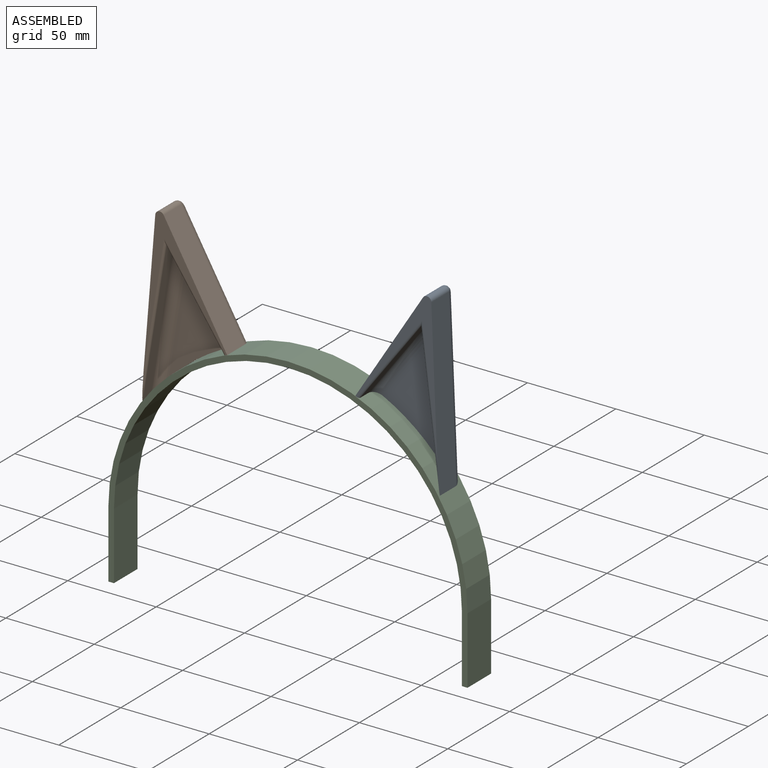
[diagram: assembled view]
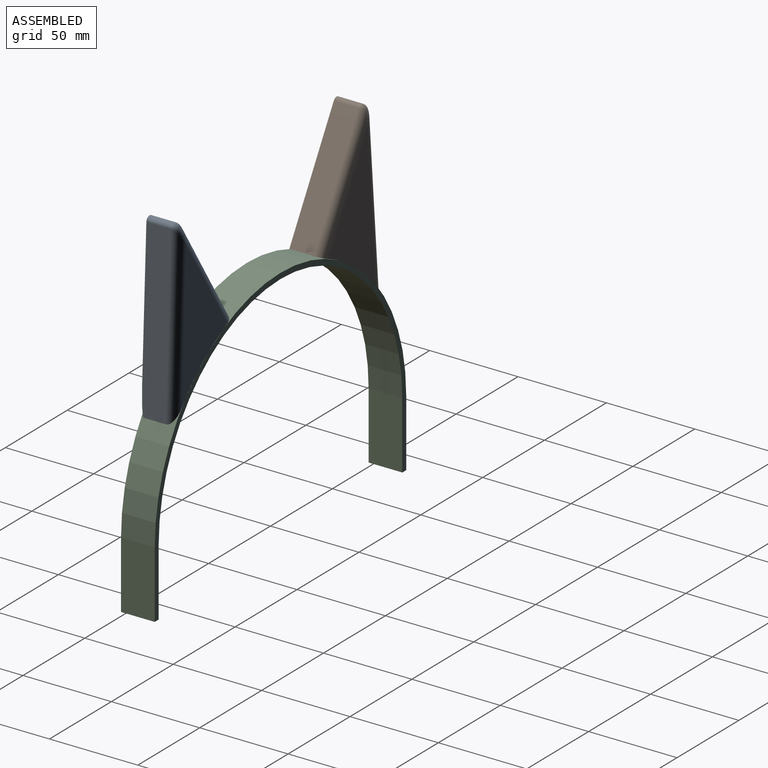
[diagram: assembled view, second angle]
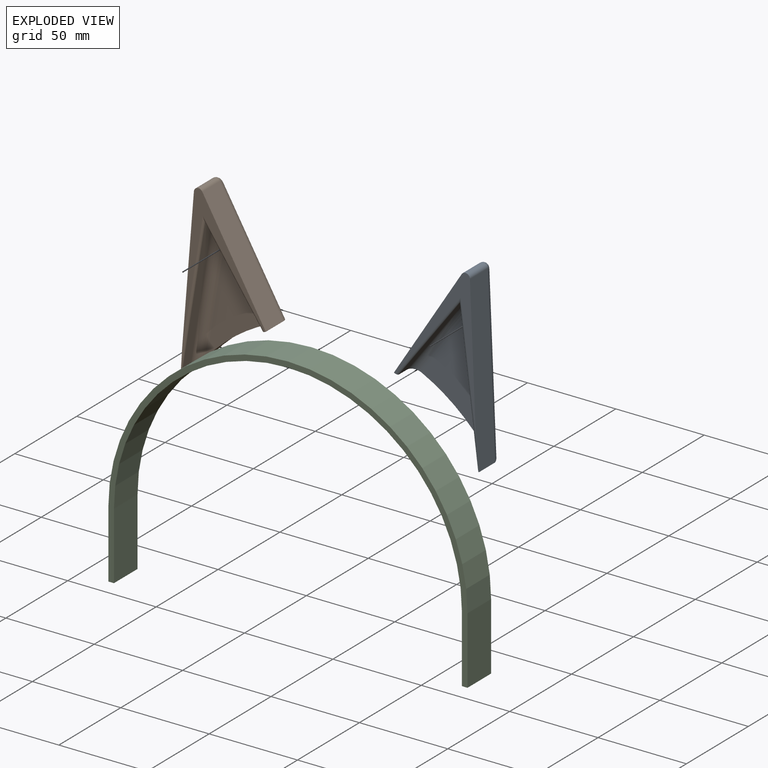
[diagram: exploded view]
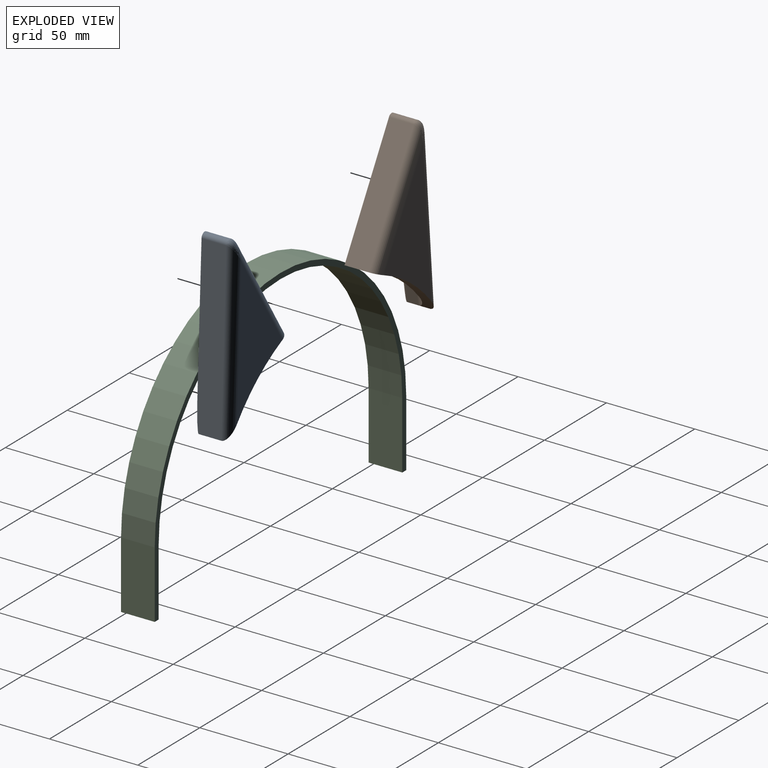
[diagram: exploded view, second angle]
ASSEMBLY  parts=3 mates=2
PART A: 16 faces, bbox 56.7x19.4x103.5 mm
  f0: plane 68.44x21.39mm, normal (-0.95,0,0.3), area 1001.7mm2, adj f1,f4,f12,f15
  f1: plane 80.53x50.85mm, normal (0,-1,0), area 508.9mm2, adj f0,f3,f4,f8,f9,f12
  f2: plane 78.67x43.31mm, normal (0,1,0), area 1385.8mm2, adj f12,f13,f15
  f3: plane 93.84x29.33mm, normal (0.95,0,0.3), area 1369.2mm2, adj f1,f4,f5,f8,f12,f13
  f4: cylinder r=2.54mm len=13.97mm, axis (0,-1,0), area 90mm2, adj f0,f1,f3,f14
  f5: plane 78.74x31.75mm, normal (-0.93,0,-0.37), area 539.1mm2, adj f3,f6,f8,f10
  f6: plane 53.64x21.63mm, normal (0.93,0,-0.37), area 367.2mm2, adj f5,f9,f11,f12
  f7: plane 58.53x40.11mm, normal (0,-1,0), area 896.2mm2, adj f10,f11,f12
  f8: cylinder r=1.27mm len=82.14mm, axis (-0.37,0,0.93), area 160.2mm2, adj f1,f3,f5,f9
  f9: cylinder r=1.27mm len=57.33mm, axis (-0.37,0,-0.93), area 117.9mm2, adj f1,f6,f8,f12
  f10: cylinder r=5.08mm len=80.64mm, axis (-0.37,0,0.93), area 613.1mm2, adj f5,f7,f11,f12
  f11: cylinder r=5.08mm len=55.54mm, axis (-0.37,0,-0.93), area 421.6mm2, adj f6,f7,f10,f12
  f12: cylinder r=101.6mm len=55.56mm, axis (0,1,0), area 423.3mm2, adj f0,f1,f2,f3,f6,f7,f9,f10
  f13: cylinder r=5.08mm len=95.36mm, axis (0.3,0,-0.95), area 737.6mm2, adj f2,f3,f12,f14
  f14: bspline ~17.03x9.09mm, area 44mm2, adj f4,f13,f15
  f15: cylinder r=5.08mm len=69.96mm, axis (0.3,0,0.95), area 546.2mm2, adj f0,f2,f12,f14
PART B: 16 faces, bbox 56.7x19.4x103.5 mm
  f0: plane 80.53x50.85mm, normal (0,-1,0), area 508.9mm2, adj f2,f3,f7,f8,f9,f12
  f1: plane 78.67x43.31mm, normal (0,1,0), area 1385.8mm2, adj f12,f13,f15
  f2: plane 93.84x29.33mm, normal (-0.95,0,0.3), area 1369.2mm2, adj f0,f5,f7,f9,f12,f15
  f3: plane 68.44x21.39mm, normal (0.95,0,0.3), area 1001.7mm2, adj f0,f7,f12,f13
  f4: plane 53.64x21.63mm, normal (-0.93,0,-0.37), area 367.2mm2, adj f5,f8,f10,f12
  f5: plane 78.74x31.75mm, normal (0.93,0,-0.37), area 539.1mm2, adj f2,f4,f9,f11
  f6: plane 58.53x40.11mm, normal (0,-1,0), area 896.2mm2, adj f10,f11,f12
  f7: cylinder r=2.54mm len=13.97mm, axis (0,-1,0), area 90mm2, adj f0,f2,f3,f14
  f8: cylinder r=1.27mm len=57.33mm, axis (-0.37,0,0.93), area 117.9mm2, adj f0,f4,f9,f12
  f9: cylinder r=1.27mm len=82.14mm, axis (-0.37,0,-0.93), area 160.2mm2, adj f0,f2,f5,f8
  f10: cylinder r=5.08mm len=55.54mm, axis (-0.37,0,0.93), area 421.6mm2, adj f4,f6,f11,f12
  f11: cylinder r=5.08mm len=80.64mm, axis (-0.37,0,-0.93), area 613.1mm2, adj f5,f6,f10,f12
  f12: cylinder r=101.6mm len=55.56mm, axis (0,1,0), area 423.3mm2, adj f0,f1,f2,f3,f4,f6,f8,f10
  f13: cylinder r=5.08mm len=69.96mm, axis (0.3,0,-0.95), area 546.2mm2, adj f1,f3,f12,f14
  f14: bspline ~17.03x6.48mm, area 44mm2, adj f7,f13,f15
  f15: cylinder r=5.08mm len=95.36mm, axis (0.3,0,0.95), area 737.6mm2, adj f1,f2,f12,f14
PART C: 10 faces, bbox 203.2x19.1x139.7 mm
  f0: cylinder r=101.6mm len=203.2mm, axis (0,1,0), area 6080.5mm2, adj f1,f2,f4,f8
  f1: plane 203.2x139.7mm, normal (0,-1,0), area 1239.5mm2, adj f0,f3,f4,f5,f6,f7,f8,f9
  f2: plane 203.2x139.7mm, normal (0,1,0), area 1239.5mm2, adj f0,f3,f4,f5,f6,f7,f8,f9
  f3: cylinder r=98.42mm len=196.85mm, axis (0,-1,0), area 5890.5mm2, adj f1,f2,f5,f7
  f4: plane 38.1x19.05mm, normal (-1,0,0), area 725.8mm2, adj f0,f1,f2,f6
  f5: plane 38.1x19.05mm, normal (1,0,0), area 725.8mm2, adj f1,f2,f3,f6
  f6: plane 19.05x3.18mm, normal (0,0,-1), area 60.5mm2, adj f1,f2,f4,f5
  f7: plane 38.1x19.05mm, normal (-1,0,0), area 725.8mm2, adj f1,f2,f3,f9
  f8: plane 38.1x19.05mm, normal (1,0,0), area 725.8mm2, adj f0,f1,f2,f9
  f9: plane 19.05x3.18mm, normal (0,0,-1), area 60.5mm2, adj f1,f2,f7,f8
PLACE A rot(axis=(0,1,0),15deg) t=(-15.25,-63.81,-9.22)mm
PLACE B rot(axis=(0,-1,0),12.7deg) t=(-119.3,-69.57,-27.55)mm
PLACE C t=(-27.22,-28.39,-84.1)mm fixed
MATE revolute B.f12 <-> C.f0  axis (0,1,0) through (-27.22,-37.92,-84.1)mm
MATE revolute A.f12 <-> C.f0  axis (0,1,0) through (-27.22,-37.92,-84.1)mm
